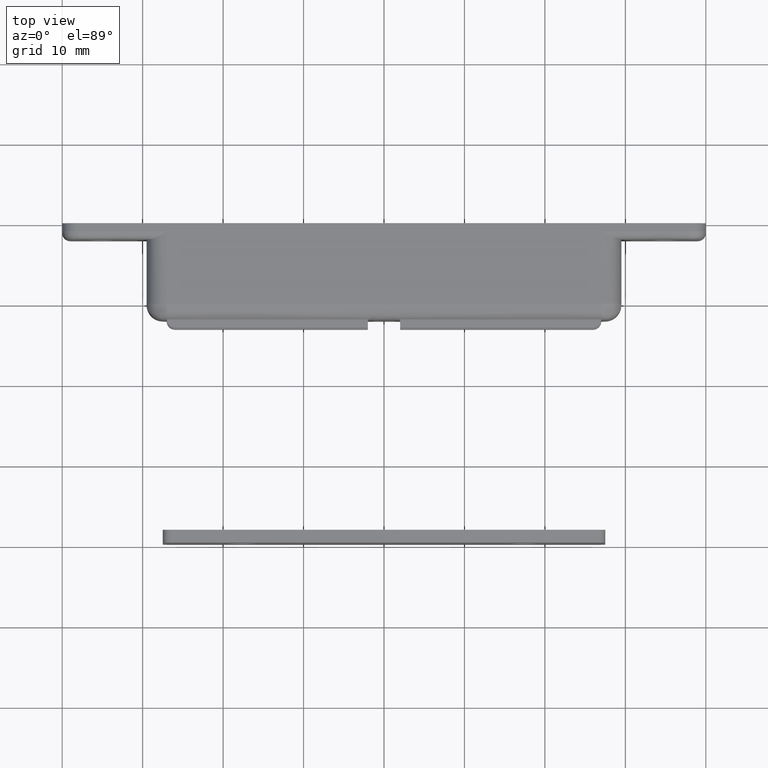
[diagram: clean part render]
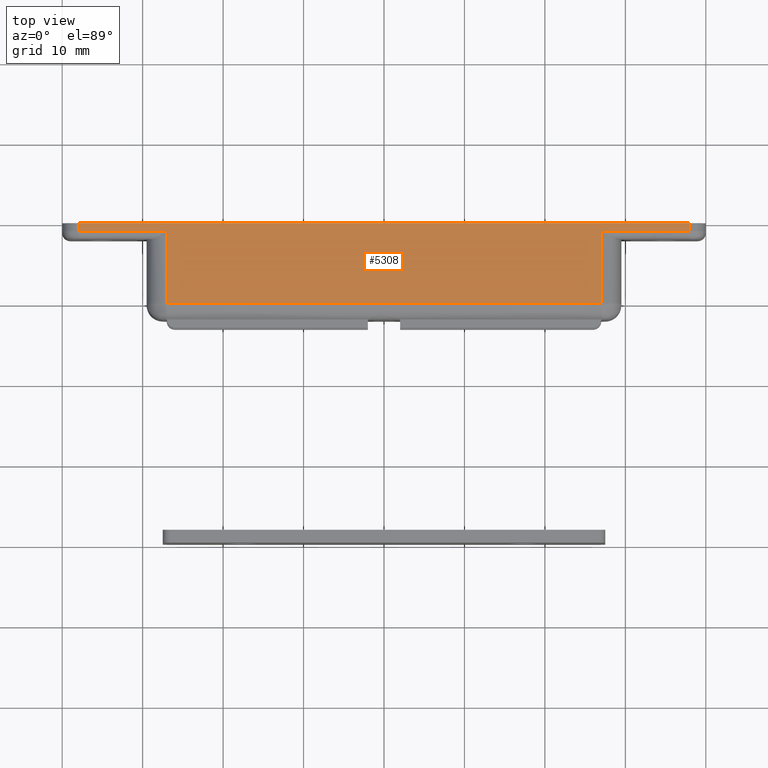
[diagram: same view with one face highlighted and labeled with its STEP entity id]
A machine part, top view. The second image highlights one B-rep face of the part: STEP entity #5308.
In plain terms, the highlighted face is a freeform B-spline surface patch.
Its self-contained STEP definition (entity closure, byte-faithful):
#2890=CARTESIAN_POINT('',(38.0,-1.0,8.500000000000000));
#2891=VERTEX_POINT('',#2890);
#2953=CARTESIAN_POINT('',(27.0,-1.0,8.500000000000000));
#2954=VERTEX_POINT('',#2953);
#2990=CARTESIAN_POINT('',(27.0,-1.0,8.500000000000000));
#2991=CARTESIAN_POINT('',(38.0,-1.0,8.500000000000000));
#2992=QUASI_UNIFORM_CURVE('',1,(#2990,#2991),.UNSPECIFIED.,.F.,.U.);
#2993=EDGE_CURVE('',#2954,#2891,#2992,.T.);
#3012=CARTESIAN_POINT('',(-27.000003000000000,-1.0,8.500000000000000));
#3013=VERTEX_POINT('',#3012);
#3045=CARTESIAN_POINT('',(-38.000003000000000,-1.0,8.500000000000000));
#3046=VERTEX_POINT('',#3045);
#3047=CARTESIAN_POINT('',(-38.000003000000000,-1.0,8.500000000000000));
#3048=CARTESIAN_POINT('',(-27.000003000000000,-1.0,8.500000000000000));
#3049=QUASI_UNIFORM_CURVE('',1,(#3047,#3048),.UNSPECIFIED.,.F.,.U.);
#3050=EDGE_CURVE('',#3046,#3013,#3049,.T.);
#4616=CARTESIAN_POINT('',(-27.000003000000000,-10.0,8.500000000000000));
#4617=VERTEX_POINT('',#4616);
#4788=CARTESIAN_POINT('',(27.0,-10.0,8.500000000000000));
#4789=VERTEX_POINT('',#4788);
#4803=CARTESIAN_POINT('',(-27.000003000000000,-10.0,8.500000000000000));
#4804=CARTESIAN_POINT('',(27.0,-10.0,8.500000000000000));
#4805=QUASI_UNIFORM_CURVE('',1,(#4803,#4804),.UNSPECIFIED.,.F.,.U.);
#4806=EDGE_CURVE('',#4617,#4789,#4805,.T.);
#4991=CARTESIAN_POINT('',(27.0,-10.0,8.500000000000000));
#4992=CARTESIAN_POINT('',(27.0,-1.0,8.500000000000000));
#4993=QUASI_UNIFORM_CURVE('',1,(#4991,#4992),.UNSPECIFIED.,.F.,.U.);
#4994=EDGE_CURVE('',#4789,#2954,#4993,.T.);
#5080=CARTESIAN_POINT('',(38.0,0.0,8.500000000000000));
#5081=VERTEX_POINT('',#5080);
#5082=CARTESIAN_POINT('',(38.0,-1.0,8.500000000000000));
#5083=CARTESIAN_POINT('',(38.0,0.0,8.500000000000000));
#5084=QUASI_UNIFORM_CURVE('',1,(#5082,#5083),.UNSPECIFIED.,.F.,.U.);
#5085=EDGE_CURVE('',#2891,#5081,#5084,.T.);
#5133=CARTESIAN_POINT('',(-27.000003000000000,-1.0,8.500000000000000));
#5134=CARTESIAN_POINT('',(-27.000003000000000,-10.0,8.500000000000000));
#5135=QUASI_UNIFORM_CURVE('',1,(#5133,#5134),.UNSPECIFIED.,.F.,.U.);
#5136=EDGE_CURVE('',#3013,#4617,#5135,.T.);
#5266=CARTESIAN_POINT('',(-38.000003000000000,0.0,8.500000000000000));
#5267=VERTEX_POINT('',#5266);
#5268=CARTESIAN_POINT('',(-38.000003000000000,0.0,8.500000000000000));
#5269=CARTESIAN_POINT('',(-38.000003000000000,-1.0,8.500000000000000));
#5270=QUASI_UNIFORM_CURVE('',1,(#5268,#5269),.UNSPECIFIED.,.F.,.U.);
#5271=EDGE_CURVE('',#5267,#3046,#5270,.T.);
#5289=CARTESIAN_POINT('',(-41.796204429414537,0.499499980618061,8.500000000000000));
#5290=CARTESIAN_POINT('',(41.796202108907522,0.499499980618061,8.500000000000000));
#5291=CARTESIAN_POINT('',(-41.796204429414537,-10.499500248838959,8.500000000000000));
#5292=CARTESIAN_POINT('',(41.796202108907522,-10.499500248838959,8.500000000000000));
#5293=B_SPLINE_SURFACE_WITH_KNOTS('',1,1,((#5289,#5291),(#5290,#5292)),.UNSPECIFIED.,.F.,.F.,.U.,(2,2),(2,2),(0.0,83.592406538322052),(0.0,10.999000229457019),.UNSPECIFIED.);
#5294=ORIENTED_EDGE('',*,*,#4994,.T.);
#5295=ORIENTED_EDGE('',*,*,#2993,.T.);
#5296=ORIENTED_EDGE('',*,*,#5085,.T.);
#5297=CARTESIAN_POINT('',(-38.000003000000000,0.0,8.500000000000000));
#5298=CARTESIAN_POINT('',(38.0,0.0,8.500000000000000));
#5299=QUASI_UNIFORM_CURVE('',1,(#5297,#5298),.UNSPECIFIED.,.F.,.U.);
#5300=EDGE_CURVE('',#5267,#5081,#5299,.T.);
#5301=ORIENTED_EDGE('',*,*,#5300,.F.);
#5302=ORIENTED_EDGE('',*,*,#5271,.T.);
#5303=ORIENTED_EDGE('',*,*,#3050,.T.);
#5304=ORIENTED_EDGE('',*,*,#5136,.T.);
#5305=ORIENTED_EDGE('',*,*,#4806,.T.);
#5306=EDGE_LOOP('',(#5294,#5295,#5296,#5301,#5302,#5303,#5304,#5305));
#5307=FACE_OUTER_BOUND('',#5306,.T.);
#5308=ADVANCED_FACE('',(#5307),#5293,.F.);